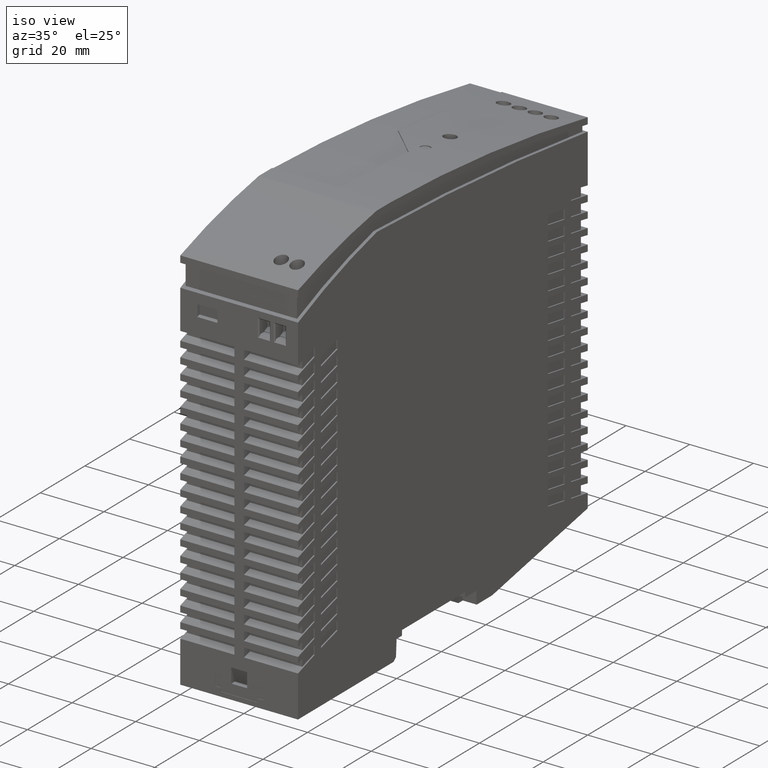
[diagram: clean part render]
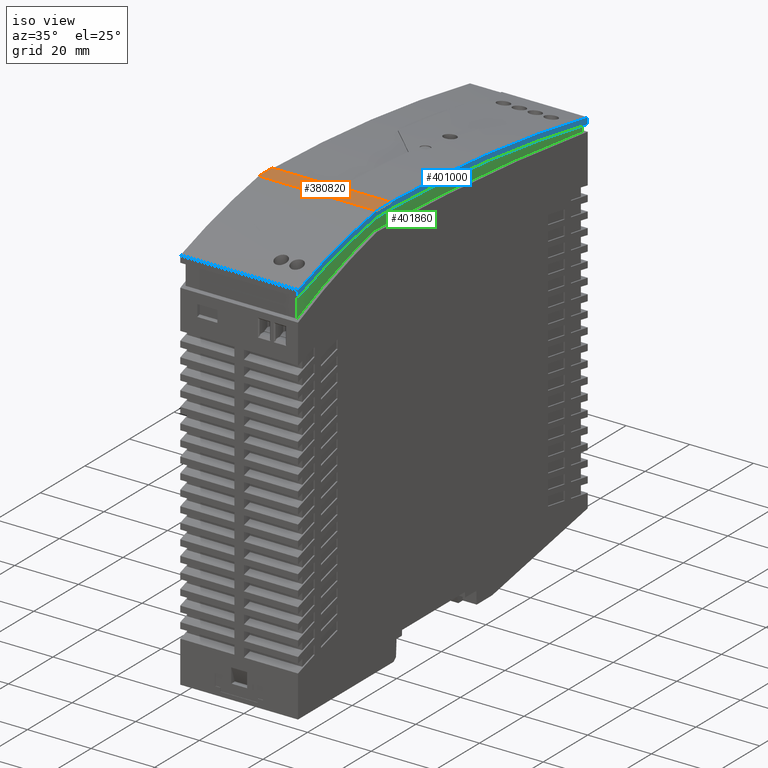
[diagram: same view with three faces highlighted in distinct colors, each labeled with its STEP entity id]
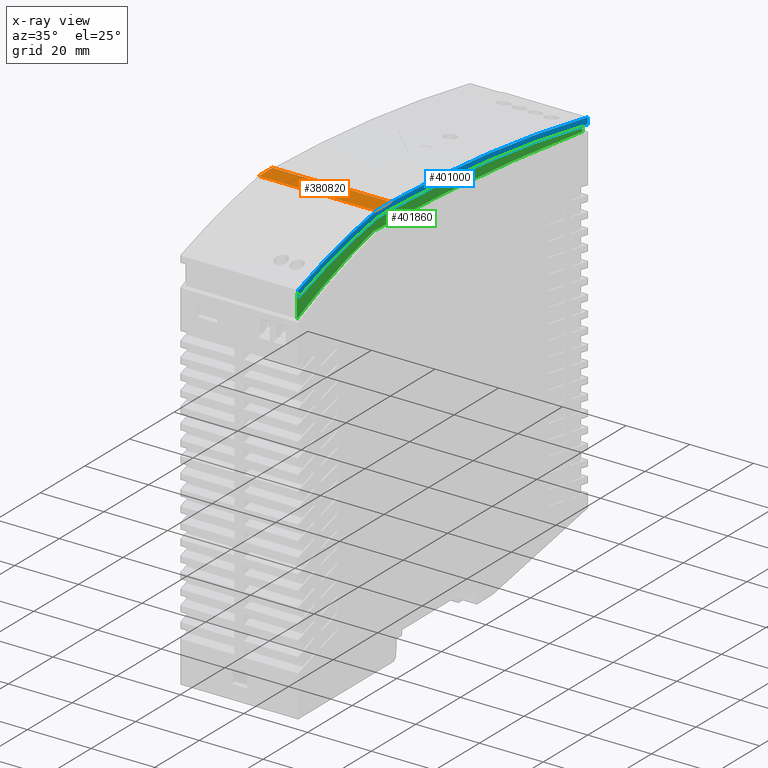
[diagram: x-ray of the same camera — body ghosted, the three highlighted faces saturated]
A machine part, iso view with three faces highlighted in distinct colors.
The next image is the same camera in x-ray (body ghosted, the three faces saturated) — at least one of them is partly hidden behind the body in this view.
Their STEP definitions:

[orange] entity #380820 — the highlighted planar face has unit normal (-0, -0, -1).
#379590=CARTESIAN_POINT('',(-14.8999999999999,125.,8.));
#379600=DIRECTION('',(1.,0.,0.));
#379610=VECTOR('',#379600,1.);
#379620=LINE('',#379590,#379610);
#379630=CARTESIAN_POINT('',(-44.7034385856615,125.,8.));
#379640=VERTEX_POINT('',#379630);
#379650=CARTESIAN_POINT('',(-38.6652289531909,125.,8.));
#379660=VERTEX_POINT('',#379650);
#379670=EDGE_CURVE('',#379640,#379660,#379620,.T.);
#380360=CARTESIAN_POINT('',(-44.7034385856616,125.,53.));
#380370=DIRECTION('',(-0.,-1.,-0.));
#380380=DIRECTION('',(-1.,0.,0.));
#380390=AXIS2_PLACEMENT_3D('',#380360,#380370,#380380);
#380400=PLANE('',#380390);
#380410=CARTESIAN_POINT('',(-38.2290414310936,125.,53.));
#380420=DIRECTION('',(0.,0.,-1.));
#380430=VECTOR('',#380420,1.);
#380440=LINE('',#380410,#380430);
#380450=CARTESIAN_POINT('',(-38.2290414310936,125.,45.));
#380460=VERTEX_POINT('',#380450);
#380470=CARTESIAN_POINT('',(-38.2290414310937,125.,29.0071108276838));
#380480=VERTEX_POINT('',#380470);
#380490=EDGE_CURVE('',#380460,#380480,#380440,.T.);
#380500=ORIENTED_EDGE('',*,*,#380490,.T.);
#380510=CARTESIAN_POINT('',(219.5810370682,125.,45.));
#380520=DIRECTION('',(-1.,0.,0.));
#380530=VECTOR('',#380520,1.);
#380540=LINE('',#380510,#380530);
#380550=CARTESIAN_POINT('',(-44.7034385856614,125.,45.));
#380560=VERTEX_POINT('',#380550);
#380570=EDGE_CURVE('',#380460,#380560,#380540,.T.);
#380580=ORIENTED_EDGE('',*,*,#380570,.F.);
#380590=CARTESIAN_POINT('',(-44.7034385856615,125.,8.));
#380600=DIRECTION('',(0.,0.,-1.));
#380610=VECTOR('',#380600,1.);
#380620=LINE('',#380590,#380610);
#380630=EDGE_CURVE('',#380560,#379640,#380620,.T.);
#380640=ORIENTED_EDGE('',*,*,#380630,.F.);
#380650=ORIENTED_EDGE('',*,*,#379670,.F.);
#380660=CARTESIAN_POINT('',(-38.6652289531909,125.,0.));
#380670=DIRECTION('',(-3.73686693976005E-17,0.,1.));
#380680=VECTOR('',#380670,1.);
#380690=LINE('',#380660,#380680);
#380700=CARTESIAN_POINT('',(-38.6652289531909,125.,29.0070198191633));
#380710=VERTEX_POINT('',#380700);
#380720=EDGE_CURVE('',#379660,#380710,#380690,.T.);
#380730=ORIENTED_EDGE('',*,*,#380720,.F.);
#380740=CARTESIAN_POINT('',(-14.9,125.,29.0119783248917));
#380750=DIRECTION('',(-0.999999978233549,0.,-0.000208645396609626));
#380760=VECTOR('',#380750,1.);
#380770=LINE('',#380740,#380760);
#380780=EDGE_CURVE('',#380480,#380710,#380770,.T.);
#380790=ORIENTED_EDGE('',*,*,#380780,.T.);
#380800=EDGE_LOOP('',(#380790,#380730,#380650,#380640,#380580,#380500));
#380810=FACE_OUTER_BOUND('',#380800,.T.);
#380820=ADVANCED_FACE('',(#380810),#380400,.F.);

[blue] entity #401000 — the highlighted planar face has unit normal (-1, 0, 0).
#379100=CARTESIAN_POINT('',(50.1000000000001,113.355603450625,45.));
#379110=VERTEX_POINT('',#379100);
#379140=CARTESIAN_POINT('',(50.1000000000001,60.3083718501421,45.));
#379150=DIRECTION('',(0.,1.,0.));
#379160=VECTOR('',#379150,1.);
#379170=LINE('',#379140,#379160);
#379180=CARTESIAN_POINT('',(50.1000000000002,115.338943570664,45.));
#379190=VERTEX_POINT('',#379180);
#379200=EDGE_CURVE('',#379110,#379190,#379170,.T.);
#380450=CARTESIAN_POINT('',(-38.2290414310936,125.,45.));
#380460=VERTEX_POINT('',#380450);
#380510=CARTESIAN_POINT('',(219.5810370682,125.,45.));
#380520=DIRECTION('',(-1.,0.,0.));
#380530=VECTOR('',#380520,1.);
#380540=LINE('',#380510,#380530);
#380550=CARTESIAN_POINT('',(-44.7034385856614,125.,45.));
#380560=VERTEX_POINT('',#380550);
#380570=EDGE_CURVE('',#380460,#380560,#380540,.T.);
#396190=CARTESIAN_POINT('',(-12.3563552538809,-72.36683155973,45.));
#396200=DIRECTION('',(0.,0.,1.));
#396210=DIRECTION('',(0.,-1.,0.));
#396220=AXIS2_PLACEMENT_3D('',#396190,#396200,#396210);
#396230=CIRCLE('',#396220,200.);
#396240=CARTESIAN_POINT('',(-79.8999999999997,115.882620111211,45.));
#396250=VERTEX_POINT('',#396240);
#396260=EDGE_CURVE('',#380560,#396250,#396230,.T.);
#398140=CARTESIAN_POINT('',(-53.6691393971699,-424.783233079,45.));
#398150=DIRECTION('',(0.,0.,1.));
#398160=DIRECTION('',(0.,-1.,0.));
#398170=AXIS2_PLACEMENT_3D('',#398140,#398150,#398160);
#398180=CIRCLE('',#398170,550.);
#398190=EDGE_CURVE('',#379190,#380460,#398180,.T.);
#400430=CARTESIAN_POINT('',(-38.2564083600499,123.0524077793,45.));
#400440=VERTEX_POINT('',#400430);
#400470=CARTESIAN_POINT('',(-53.6691393971699,-424.783233079,45.));
#400480=DIRECTION('',(0.,0.,-1.));
#400490=DIRECTION('',(0.0281227320933894,0.999604477750877,0.));
#400500=AXIS2_PLACEMENT_3D('',#400470,#400480,#400490);
#400510=CIRCLE('',#400500,548.0524077793);
#400520=EDGE_CURVE('',#400440,#379110,#400510,.T.);
#400650=CARTESIAN_POINT('',(-14.8999999999999,60.3083718501421,45.));
#400660=DIRECTION('',(0.,0.,-1.));
#400670=DIRECTION('',(-1.,0.,0.));
#400680=AXIS2_PLACEMENT_3D('',#400650,#400660,#400670);
#400690=PLANE('',#400680);
#400700=ORIENTED_EDGE('',*,*,#400520,.T.);
#400710=CARTESIAN_POINT('',(-14.8999999999999,123.0524077793,45.));
#400720=DIRECTION('',(1.,0.,0.));
#400730=VECTOR('',#400720,1.);
#400740=LINE('',#400710,#400730);
#400750=CARTESIAN_POINT('',(-44.5445071631592,123.052407779296,45.));
#400760=VERTEX_POINT('',#400750);
#400770=EDGE_CURVE('',#400760,#400440,#400740,.T.);
#400780=ORIENTED_EDGE('',*,*,#400770,.T.);
#400790=CARTESIAN_POINT('',(-12.3563552538809,-72.36683155973,45.));
#400800=DIRECTION('',(0.,0.,-1.));
#400810=DIRECTION('',(-0.335990082081097,0.941865523704492,0.));
#400820=AXIS2_PLACEMENT_3D('',#400790,#400800,#400810);
#400830=CIRCLE('',#400820,198.0524077793);
#400840=CARTESIAN_POINT('',(-79.9,113.812147601689,45.));
#400850=VERTEX_POINT('',#400840);
#400860=EDGE_CURVE('',#400850,#400760,#400830,.T.);
#400870=ORIENTED_EDGE('',*,*,#400860,.T.);
#400880=CARTESIAN_POINT('',(-79.8999999999999,60.3083718501421,45.));
#400890=DIRECTION('',(0.,-1.,0.));
#400900=VECTOR('',#400890,1.);
#400910=LINE('',#400880,#400900);
#400920=EDGE_CURVE('',#396250,#400850,#400910,.T.);
#400930=ORIENTED_EDGE('',*,*,#400920,.T.);
#400940=ORIENTED_EDGE('',*,*,#396260,.T.);
#400950=ORIENTED_EDGE('',*,*,#380570,.T.);
#400960=ORIENTED_EDGE('',*,*,#398190,.T.);
#400970=ORIENTED_EDGE('',*,*,#379200,.T.);
#400980=EDGE_LOOP('',(#400970,#400960,#400950,#400940,#400930,#400870,
#400780,#400700));
#400990=FACE_OUTER_BOUND('',#400980,.T.);
#401000=ADVANCED_FACE('',(#400990),#400690,.F.);

[green] entity #401860 — the highlighted planar face has unit normal (1, 0, 0).
#378380=CARTESIAN_POINT('',(-70.0810435059699,-780.637519402,44.));
#378390=DIRECTION('',(0.,0.,-1.));
#378400=DIRECTION('',(0.0283871724375405,0.999597003017217,0.));
#378410=AXIS2_PLACEMENT_3D('',#378380,#378390,#378400);
#378420=CIRCLE('',#378410,899.9475922207);
#378430=CARTESIAN_POINT('',(-44.5346434872569,118.947412769454,44.));
#378440=VERTEX_POINT('',#378430);
#378450=CARTESIAN_POINT('',(49.1000000000001,111.383527217789,44.));
#378460=VERTEX_POINT('',#378450);
#378470=EDGE_CURVE('',#378440,#378460,#378420,.T.);
#400260=CARTESIAN_POINT('',(49.1000000000001,113.547469798193,44.));
#400270=VERTEX_POINT('',#400260);
#400300=CARTESIAN_POINT('',(-53.6691393971699,-424.783233079,44.));
#400310=DIRECTION('',(0.,0.,-1.));
#400320=DIRECTION('',(0.0281227320933894,0.999604477750877,0.));
#400330=AXIS2_PLACEMENT_3D('',#400300,#400310,#400320);
#400340=CIRCLE('',#400330,548.0524077793);
#400350=CARTESIAN_POINT('',(-38.2564083600488,123.052407779338,44.));
#400360=VERTEX_POINT('',#400350);
#400370=EDGE_CURVE('',#400360,#400270,#400340,.T.);
#401390=CARTESIAN_POINT('',(-14.8999999999999,140.,44.));
#401400=DIRECTION('',(0.,0.,1.));
#401410=DIRECTION('',(1.,0.,0.));
#401420=AXIS2_PLACEMENT_3D('',#401390,#401400,#401410);
#401430=PLANE('',#401420);
#401440=ORIENTED_EDGE('',*,*,#378470,.T.);
#401450=CARTESIAN_POINT('',(2.93259153328011,-75.28415323968,44.));
#401460=DIRECTION('',(0.,0.,-1.));
#401470=DIRECTION('',(-0.409270202378578,0.912413229542951,0.));
#401480=AXIS2_PLACEMENT_3D('',#401450,#401460,#401470);
#401490=CIRCLE('',#401480,199.9475922207);
#401500=CARTESIAN_POINT('',(-78.8999999999999,107.150675117744,44.));
#401510=VERTEX_POINT('',#401500);
#401520=EDGE_CURVE('',#401510,#378440,#401490,.T.);
#401530=ORIENTED_EDGE('',*,*,#401520,.T.);
#401540=CARTESIAN_POINT('',(-78.8999999999992,60.8083718501421,44.));
#401550=DIRECTION('',(1.288845032758E-14,-1.,-0.));
#401560=VECTOR('',#401550,1.);
#401570=LINE('',#401540,#401560);
#401580=CARTESIAN_POINT('',(-78.8999999999999,114.171903214259,44.));
#401590=VERTEX_POINT('',#401580);
#401600=EDGE_CURVE('',#401590,#401510,#401570,.T.);
#401610=ORIENTED_EDGE('',*,*,#401600,.T.);
#401620=CARTESIAN_POINT('',(-12.3563552538809,-72.36683155973,44.));
#401630=DIRECTION('',(0.,0.,-1.));
#401640=DIRECTION('',(-0.335990082081097,0.941865523704492,0.));
#401650=AXIS2_PLACEMENT_3D('',#401620,#401630,#401640);
#401660=CIRCLE('',#401650,198.0524077793);
#401670=CARTESIAN_POINT('',(-44.5445071631599,123.0524077793,44.));
#401680=VERTEX_POINT('',#401670);
#401690=EDGE_CURVE('',#401590,#401680,#401660,.T.);
#401700=ORIENTED_EDGE('',*,*,#401690,.F.);
#401710=CARTESIAN_POINT('',(-14.8999999999999,123.0524077793,44.));
#401720=DIRECTION('',(-1.,0.,0.));
#401730=VECTOR('',#401720,1.);
#401740=LINE('',#401710,#401730);
#401750=EDGE_CURVE('',#400360,#401680,#401740,.T.);
#401760=ORIENTED_EDGE('',*,*,#401750,.T.);
#401770=ORIENTED_EDGE('',*,*,#400370,.F.);
#401780=CARTESIAN_POINT('',(49.1000000000001,60.8083718501421,44.));
#401790=DIRECTION('',(0.,1.,0.));
#401800=VECTOR('',#401790,1.);
#401810=LINE('',#401780,#401800);
#401820=EDGE_CURVE('',#378460,#400270,#401810,.T.);
#401830=ORIENTED_EDGE('',*,*,#401820,.T.);
#401840=EDGE_LOOP('',(#401830,#401770,#401760,#401700,#401610,#401530,
#401440));
#401850=FACE_OUTER_BOUND('',#401840,.T.);
#401860=ADVANCED_FACE('',(#401850),#401430,.T.);